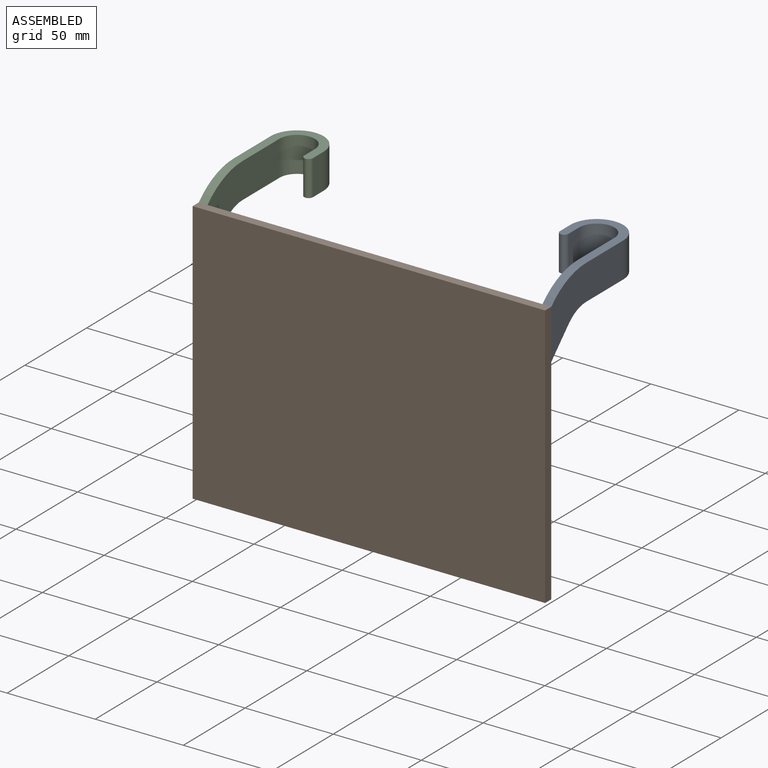
[diagram: assembled view]
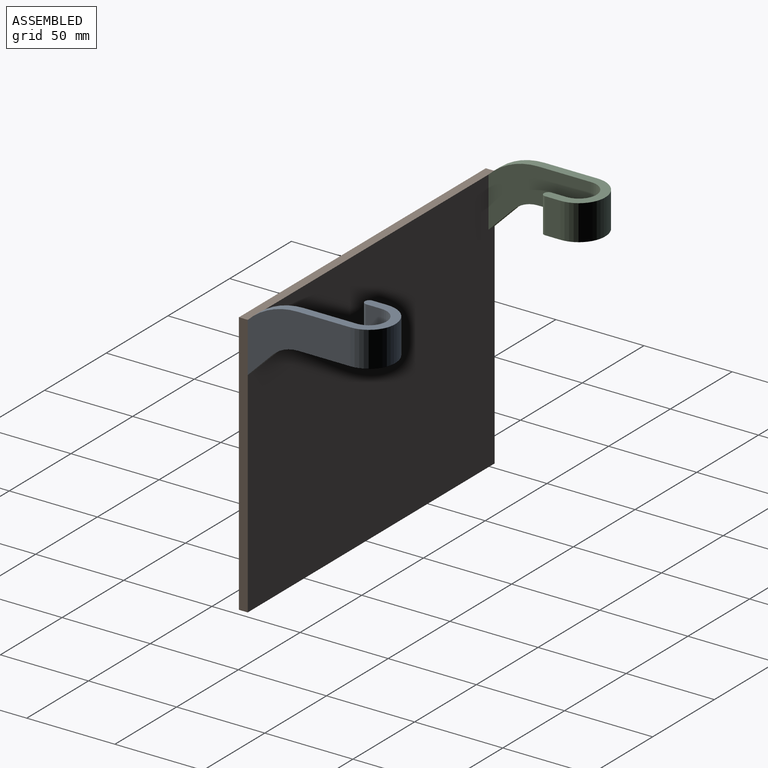
[diagram: assembled view, second angle]
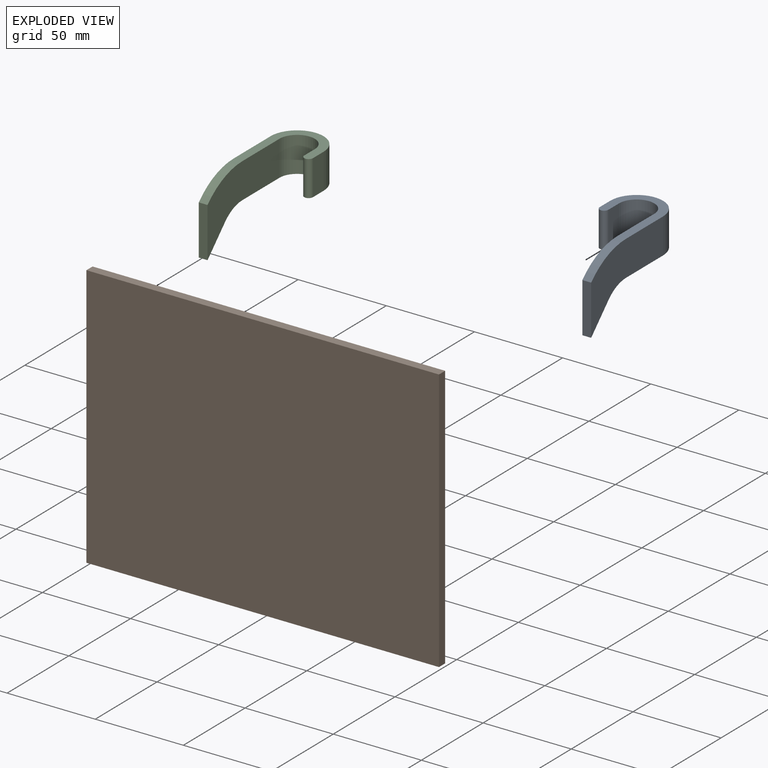
[diagram: exploded view]
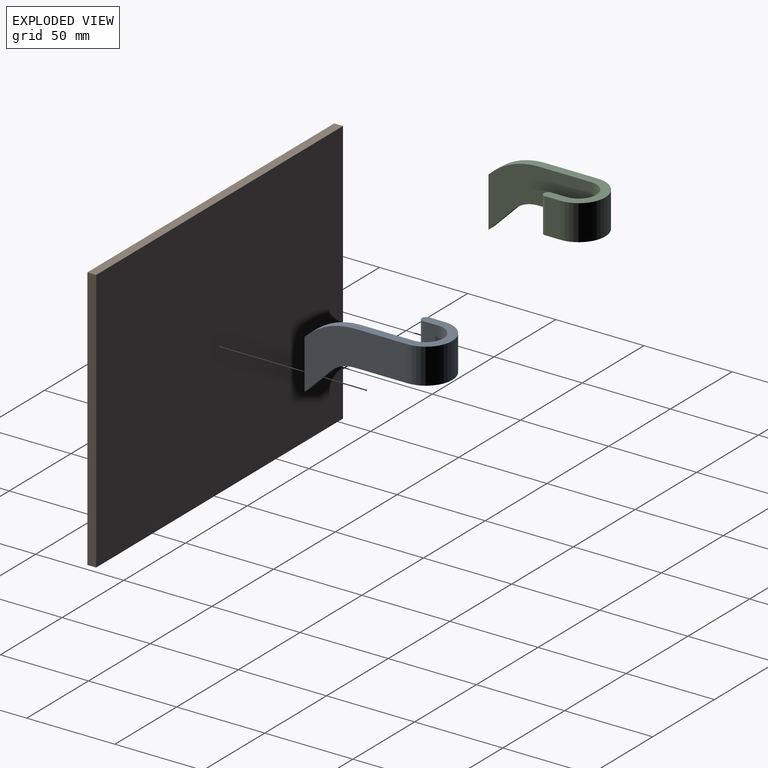
[diagram: exploded view, second angle]
ASSEMBLY  parts=3 mates=2
PART A: 13 faces, bbox 30x73.3x40 mm
  f0: plane 20x8.56mm, normal (1,0,0), area 171.2mm2, adj f1,f6,f7,f8
  f1: cylinder r=2.5mm len=20mm, axis (0,0,-1), area 157.1mm2, adj f0,f2,f7,f8
  f2: plane 20x8.56mm, normal (-1,0,0), area 171.2mm2, adj f1,f3,f7,f8
  f3: cylinder r=15mm len=30mm, axis (0,0,-1), area 942.5mm2, adj f2,f4,f7,f8
  f4: plane 58.28x40mm, normal (1,0,0), area 1271.2mm2, adj f3,f7,f8,f9,f10,f11,f12
  f5: plane 58.28x40mm, normal (-1,0,0), area 1271.2mm2, adj f6,f7,f8,f9,f10,f11,f12
  f6: cylinder r=10mm len=20mm, axis (0,0,-1), area 628.3mm2, adj f0,f5,f7,f8
  f7: plane 45x30mm, normal (0,0,1), area 399mm2, adj f0,f1,f2,f3,f4,f5,f6,f9
  f8: plane 45x30mm, normal (0,0,-1), area 399mm2, adj f0,f1,f2,f3,f4,f5,f6,f10
  f9: cylinder r=40mm len=28.28mm, axis (1,0,0), area 157.1mm2, adj f4,f5,f7,f12
  f10: cylinder r=20mm len=14.14mm, axis (1,0,0), area 78.5mm2, adj f4,f5,f8,f11
  f11: plane 14.14x14.14mm, normal (0,0.71,-0.71), area 100mm2, adj f4,f5,f10,f12
  f12: plane 28.28x5mm, normal (0,-1,0), area 141.4mm2, adj f4,f5,f9,f11
PART B: 6 faces, bbox 200x5x150 mm
  f0: plane 150x5mm, normal (-1,0,0), area 750mm2, adj f1,f3,f4,f5
  f1: plane 200x5mm, normal (0,0,-1), area 1000mm2, adj f0,f2,f4,f5
  f2: plane 150x5mm, normal (1,0,0), area 750mm2, adj f1,f3,f4,f5
  f3: plane 200x5mm, normal (0,0,1), area 1000mm2, adj f0,f2,f4,f5
  f4: plane 200x150mm, normal (0,-1,0), area 30000mm2, adj f0,f1,f2,f3
  f5: plane 200x150mm, normal (0,1,0), area 30000mm2, adj f0,f1,f2,f3
PART C: 13 faces, bbox 30x73.3x40 mm
  f0: plane 20x8.56mm, normal (-1,0,0), area 171.2mm2, adj f1,f6,f7,f8
  f1: cylinder r=2.5mm len=20mm, axis (0,0,-1), area 157.1mm2, adj f0,f2,f7,f8
  f2: plane 20x8.56mm, normal (1,0,0), area 171.2mm2, adj f1,f3,f7,f8
  f3: cylinder r=15mm len=30mm, axis (0,0,-1), area 942.5mm2, adj f2,f4,f7,f8
  f4: plane 58.28x40mm, normal (-1,0,0), area 1271.2mm2, adj f3,f7,f8,f9,f10,f11,f12
  f5: plane 58.28x40mm, normal (1,0,0), area 1271.2mm2, adj f6,f7,f8,f9,f10,f11,f12
  f6: cylinder r=10mm len=20mm, axis (0,0,-1), area 628.3mm2, adj f0,f5,f7,f8
  f7: plane 45x30mm, normal (0,0,1), area 399mm2, adj f0,f1,f2,f3,f4,f5,f6,f9
  f8: plane 45x30mm, normal (0,0,-1), area 399mm2, adj f0,f1,f2,f3,f4,f5,f6,f10
  f9: cylinder r=40mm len=28.28mm, axis (-1,0,0), area 157.1mm2, adj f4,f5,f7,f12
  f10: cylinder r=20mm len=14.14mm, axis (-1,0,0), area 78.5mm2, adj f4,f5,f8,f11
  f11: plane 14.14x14.14mm, normal (0,0.71,-0.71), area 100mm2, adj f4,f5,f10,f12
  f12: plane 28.28x5mm, normal (0,-1,0), area 141.4mm2, adj f4,f5,f9,f11
PLACE A t=(227.97,72.15,116.51)mm
PLACE B t=(2.97,22.43,-25.21)mm
PLACE C t=(27.97,72.15,116.51)mm
MATE fastened C.f12 <-> B.f5  axis (0,-1,0) through (2.97,22.43,124.79)mm
MATE fastened B.f5 <-> A.f12  axis (0,1,0) through (202.97,22.43,124.79)mm
